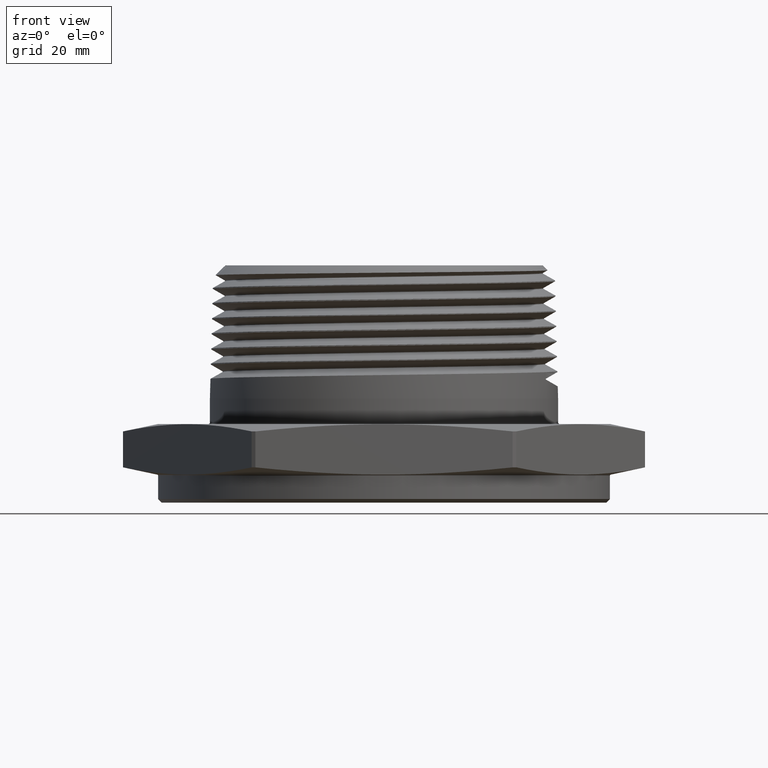
[diagram: clean part render]
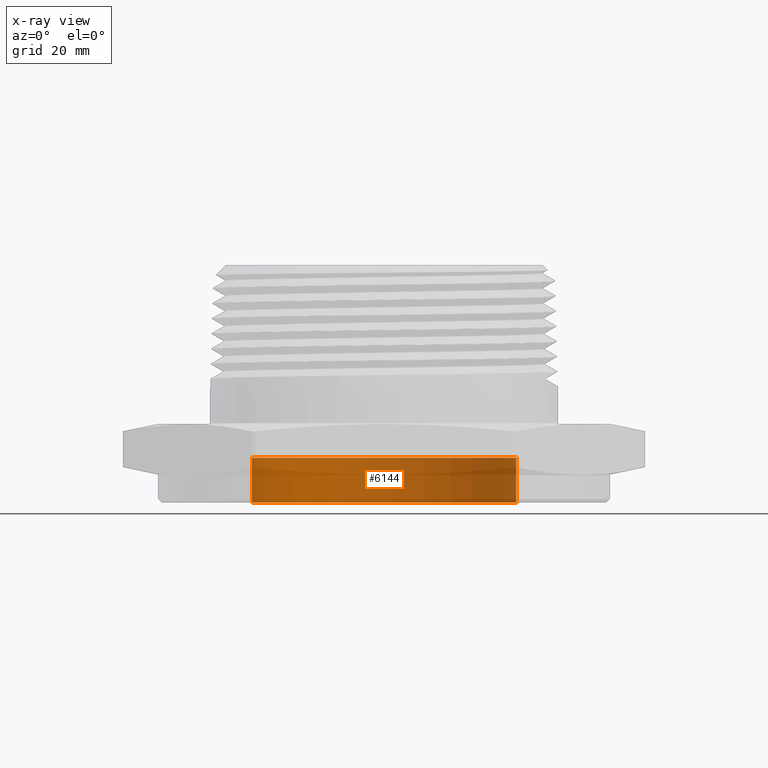
[diagram: x-ray — body ghosted, one internal face saturated and labeled with its STEP entity id]
A machine part, front view, then the same camera in x-ray: the body is ghosted and one INTERNAL B-rep face — a face not visible from any outside direction — is saturated and labeled: STEP entity #6144.
In plain terms, the highlighted cylindrical surface (partial cylindrical patch) has radius 27.7368 mm, axis along (0, 0, -1).
Its self-contained STEP definition (entity closure, byte-faithful):
#1198 = EDGE_LOOP ( 'NONE', ( #7826, #7827, #7828, #7829 ) ) ;
#1400 = CARTESIAN_POINT ( 'NONE',  ( 1.092000000000000300, 1.337314304668909900E-016, 0.1400000000000000100 ) ) ;
#1401 = DIRECTION ( 'NONE',  ( 0.0000000000000000000, 0.0000000000000000000, -1.000000000000000000 ) ) ;
#1402 = DIRECTION ( 'NONE',  ( 0.0000000000000000000, 0.0000000000000000000, -1.000000000000000000 ) ) ;
#1403 = CARTESIAN_POINT ( 'NONE',  ( 2.449293598294837300E-018, 0.0000000000000000000, 0.1400000000000000100 ) ) ;
#1404 = DIRECTION ( 'NONE',  ( 0.0000000000000000000, 0.0000000000000000000, -1.000000000000000000 ) ) ;
#1405 = DIRECTION ( 'NONE',  ( -1.000000000000000000, 0.0000000000000000000, 0.0000000000000000000 ) ) ;
#1406 = CARTESIAN_POINT ( 'NONE',  ( -1.092000000000000300, 0.0000000000000000000, 0.1400000000000000100 ) ) ;
#1407 = CARTESIAN_POINT ( 'NONE',  ( 2.449293598294837300E-018, 0.0000000000000000000, -0.2300000000000000100 ) ) ;
#1408 = DIRECTION ( 'NONE',  ( 0.0000000000000000000, 0.0000000000000000000, -1.000000000000000000 ) ) ;
#1409 = DIRECTION ( 'NONE',  ( -1.000000000000000000, 0.0000000000000000000, 0.0000000000000000000 ) ) ;
#1941 = CARTESIAN_POINT ( 'NONE',  ( 1.092000000000000300, 1.337314304668909900E-016, 0.1400000000000000100 ) ) ;
#1943 = CARTESIAN_POINT ( 'NONE',  ( -1.092000000000000300, 0.0000000000000000000, 0.1400000000000000100 ) ) ;
#1944 = CARTESIAN_POINT ( 'NONE',  ( -1.092000000000000300, 0.0000000000000000000, -0.2300000000000000100 ) ) ;
#1945 = CARTESIAN_POINT ( 'NONE',  ( 1.092000000000000300, 1.337314304668909900E-016, -0.2300000000000000100 ) ) ;
#2038 = CIRCLE ( 'NONE', #5651, 1.092000000000000300 ) ;
#2042 = LINE ( 'NONE', #1400, #2045 ) ;
#2044 = LINE ( 'NONE', #1406, #2049 ) ;
#2045 = VECTOR ( 'NONE', #1401, 39.37007874015748100 ) ;
#2046 = CIRCLE ( 'NONE', #5652, 1.092000000000000300 ) ;
#2049 = VECTOR ( 'NONE', #1402, 39.37007874015748100 ) ;
#2077 = VERTEX_POINT ( 'NONE', #1941 ) ;
#2079 = VERTEX_POINT ( 'NONE', #1943 ) ;
#2080 = VERTEX_POINT ( 'NONE', #1944 ) ;
#2081 = VERTEX_POINT ( 'NONE', #1945 ) ;
#5651 = AXIS2_PLACEMENT_3D ( 'NONE', #1403, #1404, #1405 ) ;
#5652 = AXIS2_PLACEMENT_3D ( 'NONE', #1407, #1408, #1409 ) ;
#6144 = ADVANCED_FACE ( 'NONE', ( #6694 ), #6708, .T. ) ;
#6621 = EDGE_CURVE ( 'NONE', #2077, #2081, #2042, .T. ) ;
#6622 = EDGE_CURVE ( 'NONE', #2079, #2077, #2038, .T. ) ;
#6623 = EDGE_CURVE ( 'NONE', #2080, #2081, #2046, .T. ) ;
#6624 = EDGE_CURVE ( 'NONE', #2079, #2080, #2044, .T. ) ;
#6658 = AXIS2_PLACEMENT_3D ( 'NONE', #7567, #7568, #7577 ) ;
#6694 = FACE_OUTER_BOUND ( 'NONE', #1198, .T. ) ;
#6708 = CYLINDRICAL_SURFACE ( 'NONE', #6658, 1.092000000000000300 ) ;
#7567 = CARTESIAN_POINT ( 'NONE',  ( 2.449293598294837300E-018, 0.0000000000000000000, 0.1400000000000000100 ) ) ;
#7568 = DIRECTION ( 'NONE',  ( 0.0000000000000000000, 0.0000000000000000000, -1.000000000000000000 ) ) ;
#7577 = DIRECTION ( 'NONE',  ( -1.000000000000000000, 0.0000000000000000000, 0.0000000000000000000 ) ) ;
#7826 = ORIENTED_EDGE ( 'NONE', *, *, #6622, .T. ) ;
#7827 = ORIENTED_EDGE ( 'NONE', *, *, #6621, .T. ) ;
#7828 = ORIENTED_EDGE ( 'NONE', *, *, #6623, .F. ) ;
#7829 = ORIENTED_EDGE ( 'NONE', *, *, #6624, .F. ) ;